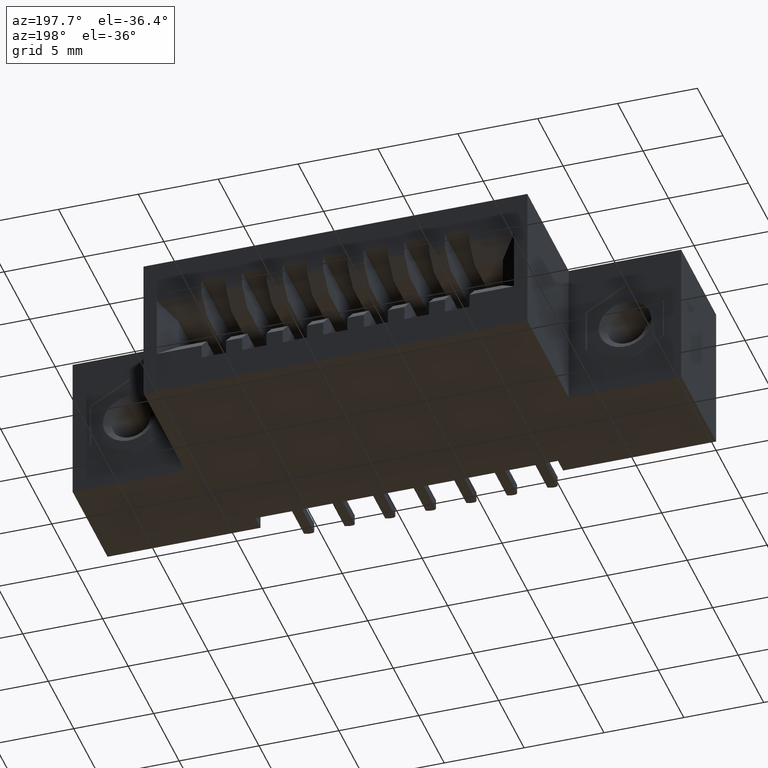
[diagram: clean part render]
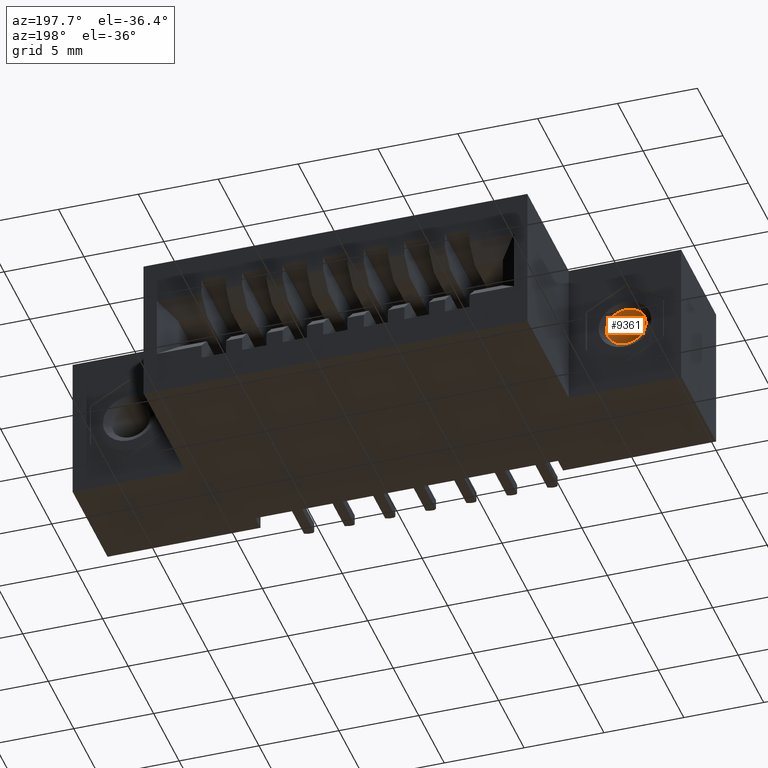
[diagram: same view with one face highlighted and labeled with its STEP entity id]
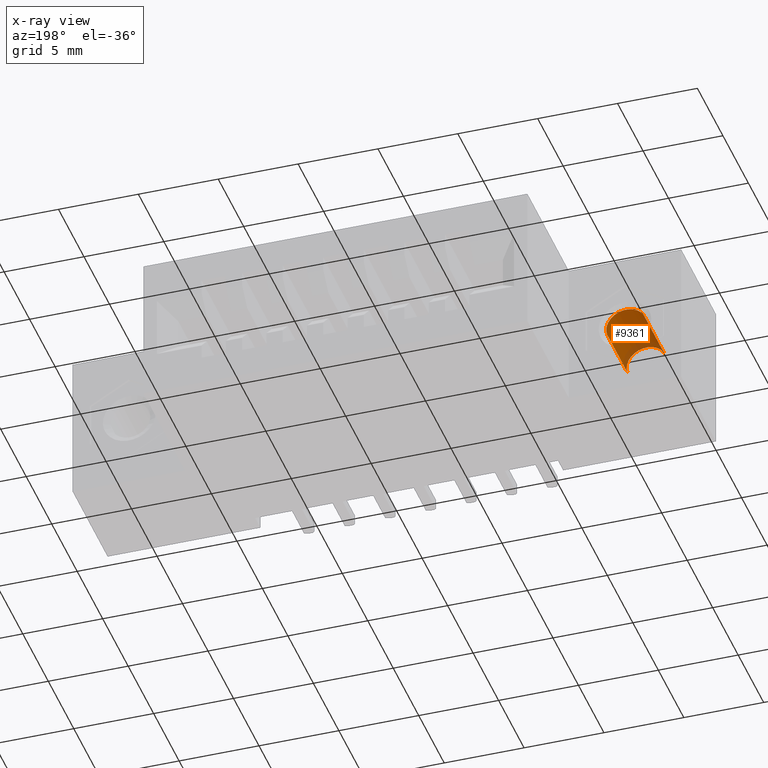
[diagram: x-ray of the same camera — body ghosted, the highlighted face saturated]
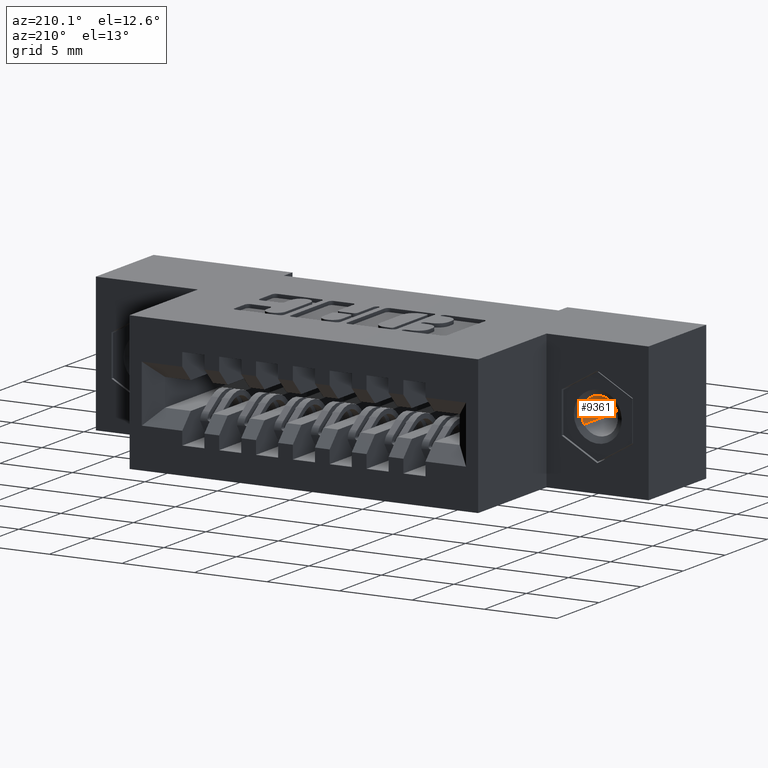
[diagram: same view with one face highlighted and labeled with its STEP entity id]
A machine part, auxiliary view. The second image highlights one B-rep face of the part: STEP entity #9361.
The next image is the same camera in x-ray: the body ghosted, the highlighted face saturated — about 15% of this face is hidden behind the body in this view.
A second angle (auxiliary view) of the same face is appended — the face is thin or edge-on in the first view.
In plain terms, the highlighted cylindrical surface (edge-blend (fillet) strip) has radius 1.25 mm, axis along (0, 1, 0).
Its self-contained STEP definition (entity closure, byte-faithful):
#123 = CIRCLE ( 'NONE', #7990, 0.04921259842519675600 ) ;
#313 = EDGE_CURVE ( 'NONE', #7084, #2214, #123, .T. ) ;
#675 = CARTESIAN_POINT ( 'NONE',  ( 5.469327078594382600E-016, -2.988895590331100800E-018, 0.04921259842519894200 ) ) ;
#703 = DIRECTION ( 'NONE',  ( 1.110223024625163900E-016, 6.505213034913063600E-017, -1.000000000000000000 ) ) ;
#813 = CARTESIAN_POINT ( 'NONE',  ( 5.518332947201812100E-016, 0.009114860549017465800, -0.04921259842519438300 ) ) ;
#976 = DIRECTION ( 'NONE',  ( 8.952246189382937400E-016, -1.000000000000000000, 6.073435839552846500E-017 ) ) ;
#1183 = CARTESIAN_POINT ( 'NONE',  ( 2.731847993664263200E-016, 0.1667125984251968700, 0.0000000000000000000 ) ) ;
#1502 = DIRECTION ( 'NONE',  ( 8.952246189382937400E-016, -1.000000000000000000, 6.073435839552846500E-017 ) ) ;
#1658 = DIRECTION ( 'NONE',  ( 1.110223024625159700E-016, 6.073435839552820600E-017, -1.000000000000000000 ) ) ;
#1819 = ORIENTED_EDGE ( 'NONE', *, *, #313, .F. ) ;
#1869 = ORIENTED_EDGE ( 'NONE', *, *, #6910, .F. ) ;
#2093 = ORIENTED_EDGE ( 'NONE', *, *, #3229, .T. ) ;
#2214 = VERTEX_POINT ( 'NONE', #7452 ) ;
#2469 = DIRECTION ( 'NONE',  ( -1.110223024625159700E-016, 0.0000000000000000000, 1.000000000000000000 ) ) ;
#2488 = AXIS2_PLACEMENT_3D ( 'NONE', #9847, #5401, #703 ) ;
#2866 = VERTEX_POINT ( 'NONE', #813 ) ;
#3167 = CIRCLE ( 'NONE', #2488, 0.04921259842519656900 ) ;
#3229 = EDGE_CURVE ( 'NONE', #2866, #8729, #3167, .T. ) ;
#4843 = DIRECTION ( 'NONE',  ( 8.952246189382937400E-016, -1.000000000000000000, 6.073435839552846500E-017 ) ) ;
#5301 = AXIS2_PLACEMENT_3D ( 'NONE', #7093, #8584, #1658 ) ;
#5401 = DIRECTION ( 'NONE',  ( 8.952246189382937400E-016, -1.000000000000000000, 6.073435839552846500E-017 ) ) ;
#6132 = VECTOR ( 'NONE', #1502, 39.37007874015748100 ) ;
#6910 = EDGE_CURVE ( 'NONE', #2214, #8729, #8126, .T. ) ;
#6979 = LINE ( 'NONE', #7105, #8713 ) ;
#7040 = EDGE_CURVE ( 'NONE', #7084, #2866, #6979, .T. ) ;
#7084 = VERTEX_POINT ( 'NONE', #8657 ) ;
#7093 = CARTESIAN_POINT ( 'NONE',  ( 5.463695987328526400E-016, 0.0000000000000000000, 2.185478394931410600E-015 ) ) ;
#7105 = CARTESIAN_POINT ( 'NONE',  ( 5.518332947201812100E-016, 2.988895590331106600E-018, -0.04921259842519457000 ) ) ;
#7106 = CARTESIAN_POINT ( 'NONE',  ( 4.682301728798986400E-016, 0.009114860549017465800, 0.04921259842519875400 ) ) ;
#7452 = CARTESIAN_POINT ( 'NONE',  ( 2.677211033790978100E-016, 0.1667125984251968700, 0.04921259842519675600 ) ) ;
#7990 = AXIS2_PLACEMENT_3D ( 'NONE', #1183, #976, #2469 ) ;
#8126 = LINE ( 'NONE', #675, #6132 ) ;
#8270 = ORIENTED_EDGE ( 'NONE', *, *, #7040, .T. ) ;
#8584 = DIRECTION ( 'NONE',  ( 8.952246189382937400E-016, -1.000000000000000000, 6.073435839552846500E-017 ) ) ;
#8657 = CARTESIAN_POINT ( 'NONE',  ( 2.928524872544166700E-016, 0.1667125984251968700, -0.04921259842519675600 ) ) ;
#8713 = VECTOR ( 'NONE', #4843, 39.37007874015748100 ) ;
#8729 = VERTEX_POINT ( 'NONE', #7106 ) ;
#8878 = CYLINDRICAL_SURFACE ( 'NONE', #5301, 0.04921259842519675600 ) ;
#9104 = FACE_OUTER_BOUND ( 'NONE', #9643, .T. ) ;
#9361 = ADVANCED_FACE ( 'NONE', ( #9104 ), #8878, .F. ) ;
#9643 = EDGE_LOOP ( 'NONE', ( #1869, #1819, #8270, #2093 ) ) ;
#9847 = CARTESIAN_POINT ( 'NONE',  ( 5.463695987328526400E-016, 0.009114860549017462400, 2.185478394931410600E-015 ) ) ;